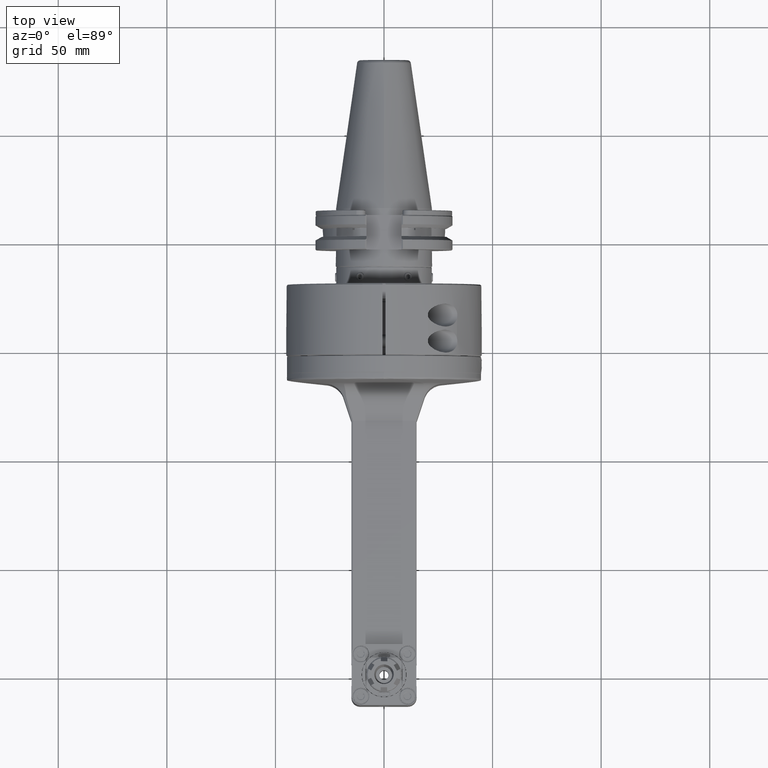
[diagram: clean part render]
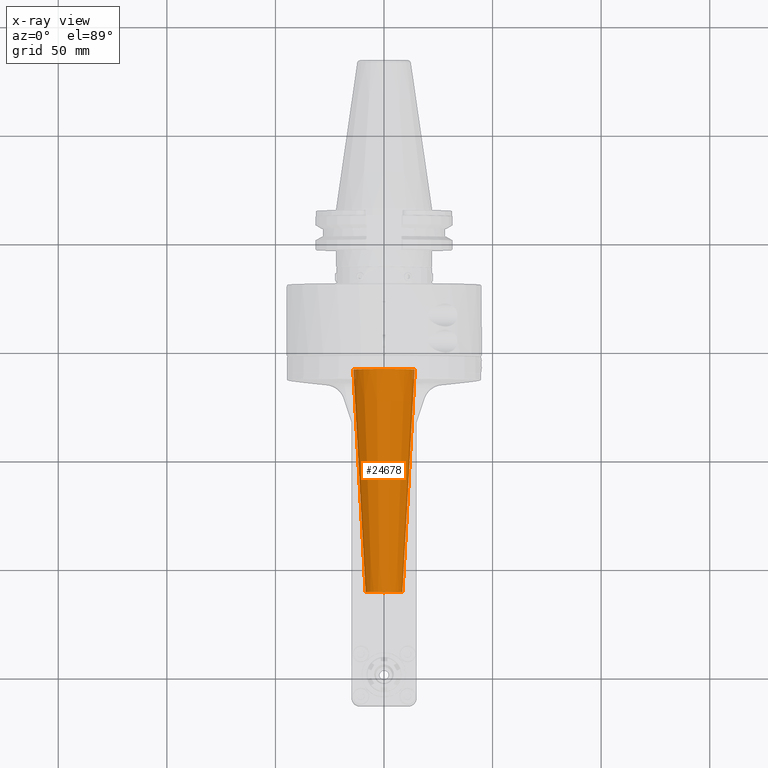
[diagram: x-ray — body ghosted, one internal face saturated and labeled with its STEP entity id]
A machine part, top view, then the same camera in x-ray: the body is ghosted and one INTERNAL B-rep face — a face not visible from any outside direction — is saturated and labeled: STEP entity #24678.
In plain terms, the highlighted conical surface has half-angle 3.195 deg.
Its self-contained STEP definition (entity closure, byte-faithful):
#719=CONICAL_SURFACE('',#27089,11.38893461425,0.0557673585797438);
#2757=LINE('',#46289,#4886);
#4886=VECTOR('',#33773,11.38893461425);
#6738=FACE_OUTER_BOUND('',#8295,.T.);
#8295=EDGE_LOOP('',(#21954,#21955,#21956,#21957,#21958));
#9397=CIRCLE('',#27088,14.25);
#9398=CIRCLE('',#27090,8.527898954938);
#9399=CIRCLE('',#27091,8.527898954938);
#11626=VERTEX_POINT('',#46285);
#11627=VERTEX_POINT('',#46288);
#11628=VERTEX_POINT('',#46290);
#15100=EDGE_CURVE('',#11626,#11626,#9397,.T.);
#15101=EDGE_CURVE('',#11626,#11627,#2757,.T.);
#15102=EDGE_CURVE('',#11627,#11628,#9398,.T.);
#15103=EDGE_CURVE('',#11628,#11627,#9399,.T.);
#21954=ORIENTED_EDGE('',*,*,#15100,.T.);
#21955=ORIENTED_EDGE('',*,*,#15101,.T.);
#21956=ORIENTED_EDGE('',*,*,#15102,.T.);
#21957=ORIENTED_EDGE('',*,*,#15103,.T.);
#21958=ORIENTED_EDGE('',*,*,#15101,.F.);
#24678=ADVANCED_FACE('',(#6738),#719,.T.);
#27088=AXIS2_PLACEMENT_3D('',#46286,#33769,#33770);
#27089=AXIS2_PLACEMENT_3D('',#46287,#33771,#33772);
#27090=AXIS2_PLACEMENT_3D('',#46291,#33774,#33775);
#27091=AXIS2_PLACEMENT_3D('',#46292,#33776,#33777);
#33769=DIRECTION('center_axis',(0.,-1.,0.));
#33770=DIRECTION('ref_axis',(0.,0.,1.));
#33771=DIRECTION('center_axis',(0.,1.,0.));
#33772=DIRECTION('ref_axis',(0.,0.,1.));
#33773=DIRECTION('',(6.82599229659702E-18,-0.998445403820465,0.0557384570093969));
#33774=DIRECTION('center_axis',(0.,1.,0.));
#33775=DIRECTION('ref_axis',(0.,0.,-1.));
#33776=DIRECTION('center_axis',(0.,1.,0.));
#33777=DIRECTION('ref_axis',(0.,0.,-1.));
#46285=CARTESIAN_POINT('',(0.,141.,-14.25));
#46286=CARTESIAN_POINT('Origin',(0.,141.,0.));
#46287=CARTESIAN_POINT('Origin',(0.,89.74961135096,0.));
#46288=CARTESIAN_POINT('',(0.,38.49975519279,-8.527898954938));
#46289=CARTESIAN_POINT('',(-1.39474223210398E-15,89.74961135096,-11.38893461425));
#46290=CARTESIAN_POINT('',(-8.52789895493442,38.4997551927938,-1.29629117129887E-14));
#46291=CARTESIAN_POINT('Origin',(0.,38.49975519279,0.));
#46292=CARTESIAN_POINT('Origin',(0.,38.49975519279,0.));